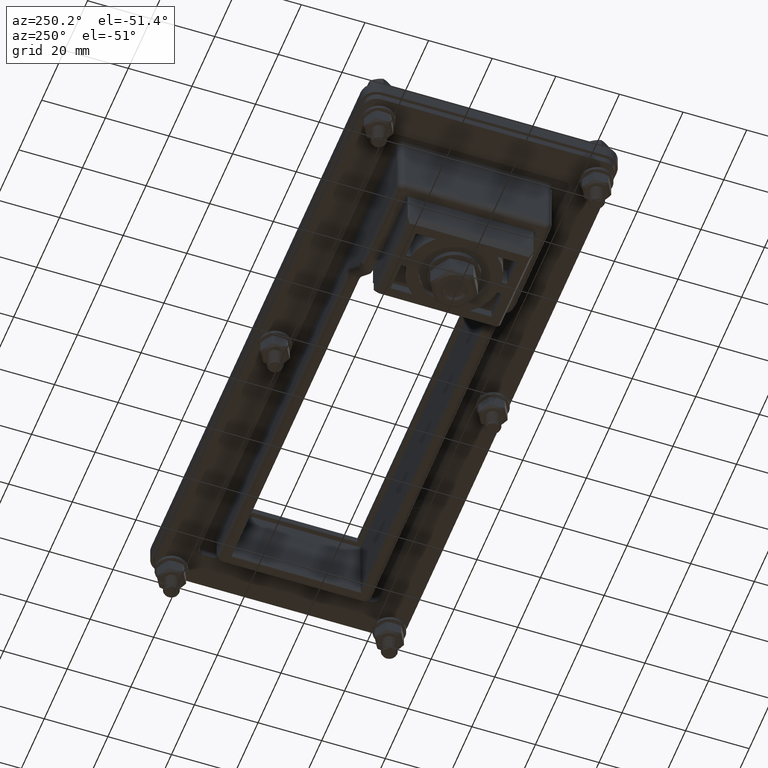
[diagram: clean part render]
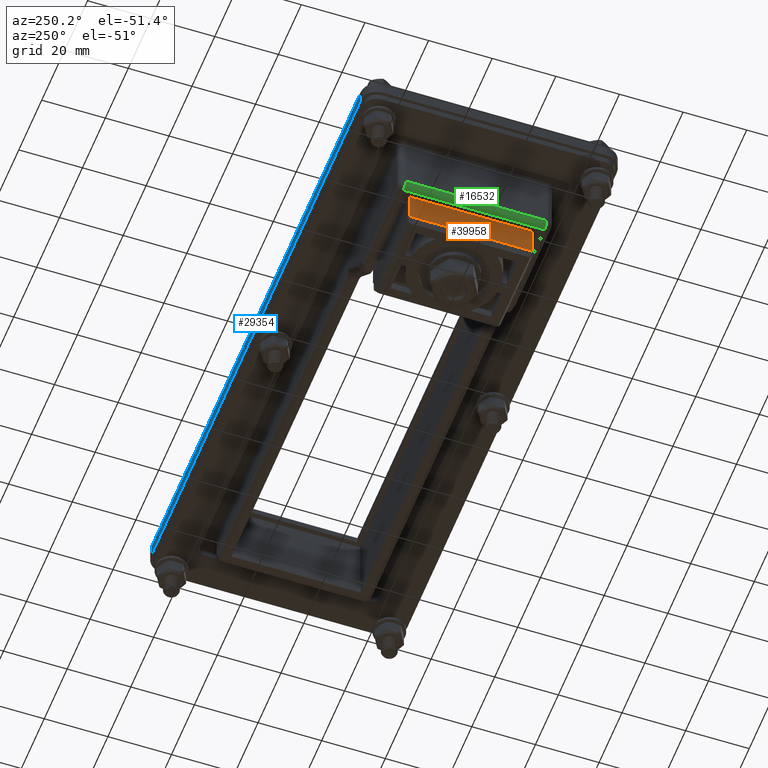
[diagram: same view with three faces highlighted in distinct colors, each labeled with its STEP entity id]
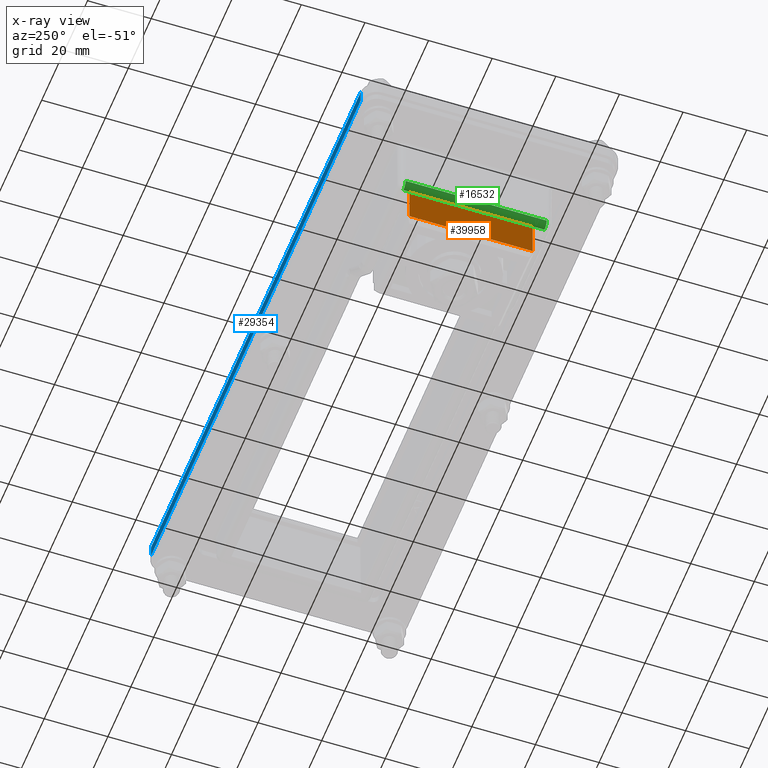
[diagram: x-ray of the same camera — body ghosted, the three highlighted faces saturated]
A machine part, auxiliary view with three faces highlighted in distinct colors.
The next image is the same camera in x-ray (body ghosted, the three faces saturated) — at least one of them is partly hidden behind the body in this view.
Their STEP definitions:

[orange] entity #39958 — the highlighted planar face has unit normal (-1, -0.0034, -0).
#39489=CARTESIAN_POINT('',(570.95626329083211,462.38383945658177,11.75));
#39490=VERTEX_POINT('',#39489);
#39498=CARTESIAN_POINT('',(570.95626329083245,462.38383945658177,0.0));
#39499=VERTEX_POINT('',#39498);
#39500=CARTESIAN_POINT('',(570.95626329083211,462.38383945658177,11.75));
#39501=DIRECTION('',(0.0,0.0,-1.0));
#39502=VECTOR('',#39501,11.75);
#39503=LINE('',#39500,#39502);
#39504=EDGE_CURVE('',#39490,#39499,#39503,.T.);
#39555=CARTESIAN_POINT('',(570.95626329083211,423.58383945658176,11.75));
#39556=VERTEX_POINT('',#39555);
#39564=CARTESIAN_POINT('',(570.95626329083211,423.58383945658176,11.75));
#39565=DIRECTION('',(0.0,1.0,0.0));
#39566=VECTOR('',#39565,38.800000000000011);
#39567=LINE('',#39564,#39566);
#39568=EDGE_CURVE('',#39556,#39490,#39567,.T.);
#39630=CARTESIAN_POINT('',(570.95626329083245,423.58383945658176,0.0));
#39631=VERTEX_POINT('',#39630);
#39639=CARTESIAN_POINT('',(570.95626329083245,423.58383945658176,0.0));
#39640=DIRECTION('',(0.0,0.0,1.0));
#39641=VECTOR('',#39640,11.75);
#39642=LINE('',#39639,#39641);
#39643=EDGE_CURVE('',#39631,#39556,#39642,.T.);
#39942=CARTESIAN_POINT('',(570.95626329083211,462.88383945658182,0.0));
#39943=DIRECTION('',(1.0,0.0,0.0));
#39944=DIRECTION('',(0.0,0.0,-1.0));
#39945=AXIS2_PLACEMENT_3D('',#39942,#39943,#39944);
#39946=PLANE('',#39945);
#39947=ORIENTED_EDGE('',*,*,#39643,.F.);
#39948=CARTESIAN_POINT('',(570.95626329083245,462.38383945658177,0.0));
#39949=DIRECTION('',(0.0,-1.0,0.0));
#39950=VECTOR('',#39949,38.800000000000011);
#39951=LINE('',#39948,#39950);
#39952=EDGE_CURVE('',#39499,#39631,#39951,.T.);
#39953=ORIENTED_EDGE('',*,*,#39952,.F.);
#39954=ORIENTED_EDGE('',*,*,#39504,.F.);
#39955=ORIENTED_EDGE('',*,*,#39568,.F.);
#39956=EDGE_LOOP('',(#39947,#39953,#39954,#39955));
#39957=FACE_OUTER_BOUND('',#39956,.T.);
#39958=ADVANCED_FACE('',(#39957),#39946,.T.);

[blue] entity #29354 — the highlighted planar face has unit normal (0, 1, 0).
#8002=CARTESIAN_POINT('',(-121.50000000000017,40.250000000000135,9.500000000000002));
#8003=VERTEX_POINT('',#8002);
#8011=CARTESIAN_POINT('',(61.500000000000199,40.250000000000192,9.500000000000002));
#8012=VERTEX_POINT('',#8011);
#8013=CARTESIAN_POINT('',(61.500000000000192,40.250000000000192,9.500000000000002));
#8014=DIRECTION('',(-1.0,0.0,0.0));
#8015=VECTOR('',#8014,183.00000000000037);
#8016=LINE('',#8013,#8015);
#8017=EDGE_CURVE('',#8012,#8003,#8016,.T.);
#14205=CARTESIAN_POINT('',(61.500000000000199,40.250000000000192,13.5));
#14206=VERTEX_POINT('',#14205);
#14214=CARTESIAN_POINT('',(-121.50000000000017,40.250000000000135,13.5));
#14215=VERTEX_POINT('',#14214);
#14216=CARTESIAN_POINT('',(-121.50000000000018,40.250000000000142,13.5));
#14217=DIRECTION('',(1.0,0.0,0.0));
#14218=VECTOR('',#14217,183.00000000000037);
#14219=LINE('',#14216,#14218);
#14220=EDGE_CURVE('',#14215,#14206,#14219,.T.);
#29010=CARTESIAN_POINT('',(-121.50000000000017,40.250000000000135,13.500000000000002));
#29011=DIRECTION('',(0.0,0.0,-1.0));
#29012=VECTOR('',#29011,4.0);
#29013=LINE('',#29010,#29012);
#29014=EDGE_CURVE('',#14215,#8003,#29013,.T.);
#29032=CARTESIAN_POINT('',(61.500000000000199,40.250000000000192,9.500000000000002));
#29033=DIRECTION('',(0.0,0.0,1.0));
#29034=VECTOR('',#29033,4.0);
#29035=LINE('',#29032,#29034);
#29036=EDGE_CURVE('',#8012,#14206,#29035,.T.);
#29343=CARTESIAN_POINT('',(-126.50000000000017,40.250000000000135,11.500000000000002));
#29344=DIRECTION('',(0.0,1.0,0.0));
#29345=DIRECTION('',(0.0,0.0,1.0));
#29346=AXIS2_PLACEMENT_3D('',#29343,#29344,#29345);
#29347=PLANE('',#29346);
#29348=ORIENTED_EDGE('',*,*,#29014,.F.);
#29349=ORIENTED_EDGE('',*,*,#14220,.T.);
#29350=ORIENTED_EDGE('',*,*,#29036,.F.);
#29351=ORIENTED_EDGE('',*,*,#8017,.T.);
#29352=EDGE_LOOP('',(#29348,#29349,#29350,#29351));
#29353=FACE_OUTER_BOUND('',#29352,.T.);
#29354=ADVANCED_FACE('',(#29353),#29347,.T.);

[green] entity #16532 — the highlighted cylindrical surface (edge-blend (fillet) strip) has radius 2 mm, axis along (0, -1, 0).
#16256=CARTESIAN_POINT('',(-108.5,-22.180108900902429,-10.0));
#16257=VERTEX_POINT('',#16256);
#16264=CARTESIAN_POINT('',(-108.50000000000001,22.180108900902443,-10.0));
#16265=VERTEX_POINT('',#16264);
#16266=CARTESIAN_POINT('',(-108.50000000000001,22.180108900902447,-10.0));
#16267=DIRECTION('',(0.0,-1.0,0.0));
#16268=VECTOR('',#16267,44.360217801804879);
#16269=LINE('',#16266,#16268);
#16270=EDGE_CURVE('',#16265,#16257,#16269,.T.);
#16500=CARTESIAN_POINT('',(-108.5,-12.124999999999986,-8.0));
#16501=DIRECTION('',(3.662591E-016,-1.0,0.0));
#16502=DIRECTION('',(-0.707106781186546,0.0,-0.707106781186549));
#16503=AXIS2_PLACEMENT_3D('',#16500,#16501,#16502);
#16504=CYLINDRICAL_SURFACE('',#16503,2.0);
#16505=ORIENTED_EDGE('',*,*,#16270,.T.);
#16506=CARTESIAN_POINT('',(-110.49999999999999,-22.180108900902429,-8.0));
#16507=VERTEX_POINT('',#16506);
#16508=CARTESIAN_POINT('',(-108.5,-22.180108900902429,-8.0));
#16509=DIRECTION('',(0.0,1.0,0.0));
#16510=DIRECTION('',(0.0,0.0,-1.0));
#16511=AXIS2_PLACEMENT_3D('',#16508,#16509,#16510);
#16512=CIRCLE('',#16511,2.0);
#16513=EDGE_CURVE('',#16257,#16507,#16512,.T.);
#16514=ORIENTED_EDGE('',*,*,#16513,.T.);
#16515=CARTESIAN_POINT('',(-110.5,22.180108900902447,-8.0));
#16516=VERTEX_POINT('',#16515);
#16517=CARTESIAN_POINT('',(-110.49999999999999,-22.180108900902429,-8.0));
#16518=DIRECTION('',(0.0,1.0,0.0));
#16519=VECTOR('',#16518,44.360217801804879);
#16520=LINE('',#16517,#16519);
#16521=EDGE_CURVE('',#16507,#16516,#16520,.T.);
#16522=ORIENTED_EDGE('',*,*,#16521,.T.);
#16523=CARTESIAN_POINT('',(-108.50000000000001,22.180108900902447,-8.0));
#16524=DIRECTION('',(0.0,-1.0,0.0));
#16525=DIRECTION('',(-1.0,0.0,0.0));
#16526=AXIS2_PLACEMENT_3D('',#16523,#16524,#16525);
#16527=CIRCLE('',#16526,1.999999999999993);
#16528=EDGE_CURVE('',#16516,#16265,#16527,.T.);
#16529=ORIENTED_EDGE('',*,*,#16528,.T.);
#16530=EDGE_LOOP('',(#16505,#16514,#16522,#16529));
#16531=FACE_OUTER_BOUND('',#16530,.T.);
#16532=ADVANCED_FACE('',(#16531),#16504,.T.);